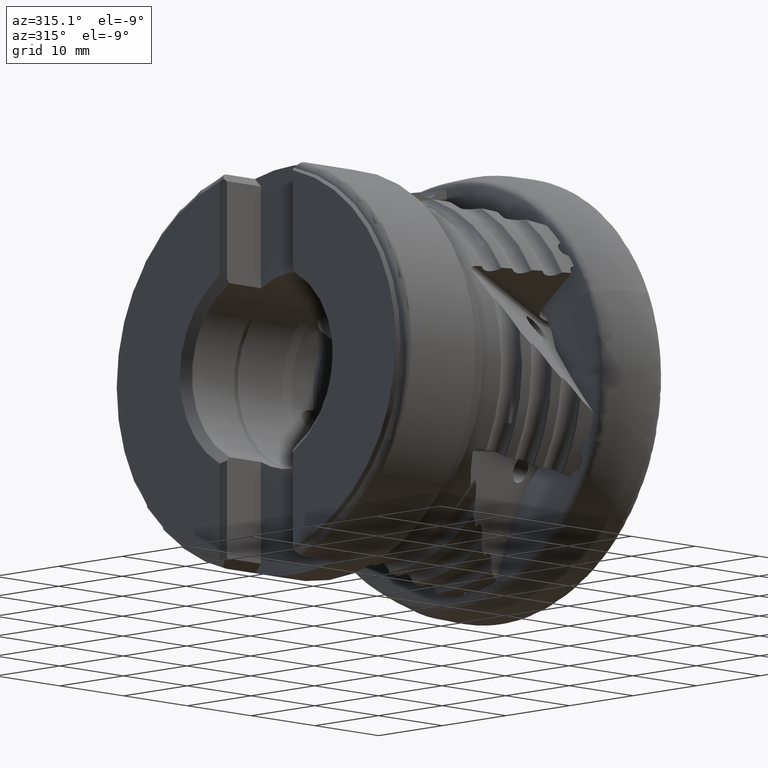
[diagram: clean part render]
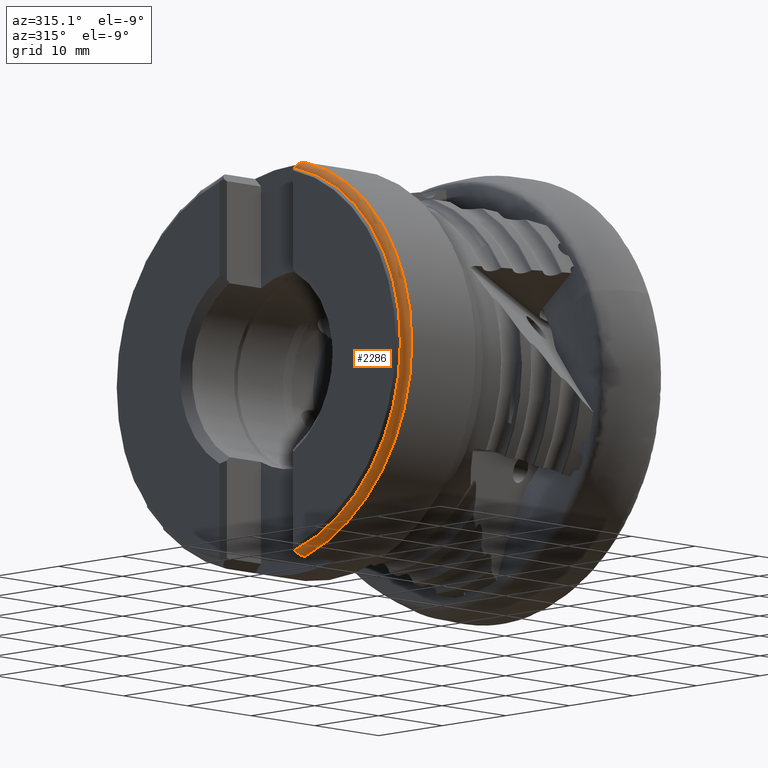
[diagram: same view with one face highlighted and labeled with its STEP entity id]
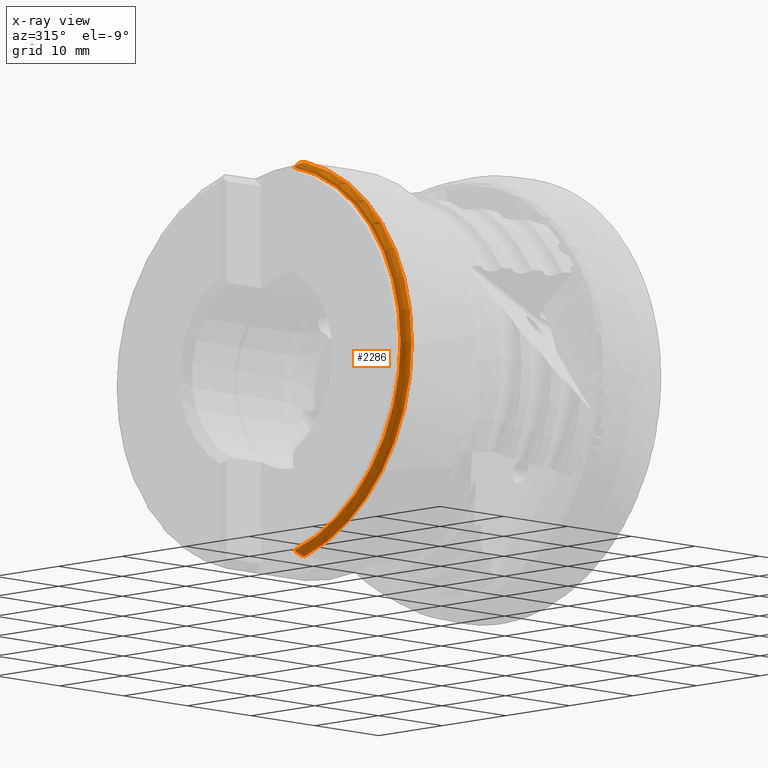
[diagram: x-ray of the same camera — body ghosted, the highlighted face saturated]
A machine part, auxiliary view. The second image highlights one B-rep face of the part: STEP entity #2286.
The next image is the same camera in x-ray: the body ghosted, the highlighted face saturated — about 0% of this face is hidden behind the body in this view.
In plain terms, the highlighted toroidal blend (fillet) surface has major radius 22 mm and minor (blend) radius 1 mm.
Its self-contained STEP definition (entity closure, byte-faithful):
#181 = TOROIDAL_SURFACE ( 'NONE', #7323, 21.99999999999999600, 1.000000000000000900 ) ;
#312 = CARTESIAN_POINT ( 'NONE',  ( -38.52876197310683900, -5.505765196031760800, -21.51159163349298000 ) ) ;
#672 = CARTESIAN_POINT ( 'NONE',  ( -38.48543908166140400, -5.676080914741536500, 21.68151065931770200 ) ) ;
#1342 = AXIS2_PLACEMENT_3D ( 'NONE', #9099, #3728, #10020 ) ;
#1780 = DIRECTION ( 'NONE',  ( 1.000000000000000000, -0.0000000000000000000, -0.0000000000000000000 ) ) ;
#2011 = B_SPLINE_CURVE_WITH_KNOTS ( 'NONE', 3,
 ( #4328, #9704, #3413, #5217, #11511, #6116, #672, #7017 ),
 .UNSPECIFIED., .F., .F.,
 ( 4, 2, 2, 4 ),
 ( 0.0000000000000000000, 0.0003622811353610845900, 0.0007245622707221691800, 0.001449124541444339700 ),
 .UNSPECIFIED. ) ;
#2166 = CARTESIAN_POINT ( 'NONE',  ( -38.36043613974800300, -5.826656989143510000, -21.83173601766229400 ) ) ;
#2286 = ADVANCED_FACE ( 'Fl�che5', ( #5035 ), #181, .T. ) ;
#2556 = DIRECTION ( 'NONE',  ( 1.000000000000000000, -0.0000000000000000000, -0.0000000000000000000 ) ) ;
#2613 = EDGE_CURVE ( 'NONE', #4187, #2741, #2011, .T. ) ;
#2741 = VERTEX_POINT ( 'NONE', #9097 ) ;
#3075 = CARTESIAN_POINT ( 'NONE',  ( -38.11847215820673500, -6.018335489103558100, -22.02296806736085300 ) ) ;
#3413 = CARTESIAN_POINT ( 'NONE',  ( -37.79267330800594500, -6.138042376461858600, 22.14239613799651000 ) ) ;
#3728 = DIRECTION ( 'NONE',  ( 1.000000000000000000, -0.0000000000000000000, -0.0000000000000000000 ) ) ;
#3811 = B_SPLINE_CURVE_WITH_KNOTS ( 'NONE', 3,
 ( #312, #5755, #7564, #2166, #8474, #3075, #9374, #4004, #10288, #4902 ),
 .UNSPECIFIED., .F., .F.,
 ( 4, 2, 2, 2, 4 ),
 ( 0.0000000000000000000, 0.0003626068956963609000, 0.0007252137913927218100, 0.001087820687089082700, 0.001450427582785443600 ),
 .UNSPECIFIED. ) ;
#4004 = CARTESIAN_POINT ( 'NONE',  ( -37.79512934776482100, -6.137478963517806600, -22.14183403733241600 ) ) ;
#4187 = VERTEX_POINT ( 'NONE', #7891 ) ;
#4328 = CARTESIAN_POINT ( 'NONE',  ( -37.54999999999999000, -6.156428778033634000, 22.16073971466203600 ) ) ;
#4526 = VERTEX_POINT ( 'NONE', #10693 ) ;
#4529 = DIRECTION ( 'NONE',  ( 0.0000000000000000000, 0.0000000000000000000, -1.000000000000000000 ) ) ;
#4616 = EDGE_CURVE ( 'NONE', #4187, #9308, #7838, .T. ) ;
#4902 = CARTESIAN_POINT ( 'NONE',  ( -37.54999999999999000, -6.156428778033639300, -22.16073971466203600 ) ) ;
#5035 = FACE_OUTER_BOUND ( 'NONE', #9859, .T. ) ;
#5217 = CARTESIAN_POINT ( 'NONE',  ( -38.01549695322271600, -6.069331795886145500, 22.07384559548803100 ) ) ;
#5378 = CARTESIAN_POINT ( 'NONE',  ( -37.54999999999999000, 0.0000000000000000000, 0.0000000000000000000 ) ) ;
#5755 = CARTESIAN_POINT ( 'NONE',  ( -38.50705336557379600, -5.591108463085767300, -21.59673612225990500 ) ) ;
#6116 = CARTESIAN_POINT ( 'NONE',  ( -38.37464612642767000, -5.837851647496018300, 21.84290460184294600 ) ) ;
#6726 = CARTESIAN_POINT ( 'NONE',  ( -37.54999999999999000, -6.156428778033639300, -22.16073971466203600 ) ) ;
#6806 = ORIENTED_EDGE ( 'NONE', *, *, #8746, .T. ) ;
#7017 = CARTESIAN_POINT ( 'NONE',  ( -38.52876197310683900, -5.505765196031756400, 21.51159163349298000 ) ) ;
#7323 = AXIS2_PLACEMENT_3D ( 'NONE', #5378, #1780, #4529 ) ;
#7515 = CIRCLE ( 'NONE', #8782, 22.20499999999999500 ) ;
#7564 = CARTESIAN_POINT ( 'NONE',  ( -38.46955393888008200, -5.672483015667497200, -21.67792114033314700 ) ) ;
#7838 = CIRCLE ( 'NONE', #1342, 23.00000000000000000 ) ;
#7891 = CARTESIAN_POINT ( 'NONE',  ( -37.54999999999999000, -6.156428778033634000, 22.16073971466203600 ) ) ;
#7954 = ORIENTED_EDGE ( 'NONE', *, *, #2613, .T. ) ;
#7958 = CARTESIAN_POINT ( 'NONE',  ( -38.52876197310683900, 0.0000000000000000000, 0.0000000000000000000 ) ) ;
#8415 = ORIENTED_EDGE ( 'NONE', *, *, #10060, .T. ) ;
#8474 = CARTESIAN_POINT ( 'NONE',  ( -38.28973416780603900, -5.897406801060737000, -21.90232104181231400 ) ) ;
#8746 = EDGE_CURVE ( 'NONE', #4526, #9308, #3811, .T. ) ;
#8782 = AXIS2_PLACEMENT_3D ( 'NONE', #7958, #2556, #8867 ) ;
#8867 = DIRECTION ( 'NONE',  ( 0.0000000000000000000, 0.0000000000000000000, -1.000000000000000000 ) ) ;
#9097 = CARTESIAN_POINT ( 'NONE',  ( -38.52876197310683900, -5.505765196031756400, 21.51159163349298000 ) ) ;
#9099 = CARTESIAN_POINT ( 'NONE',  ( -37.54999999999999000, 0.0000000000000000000, 0.0000000000000000000 ) ) ;
#9308 = VERTEX_POINT ( 'NONE', #6726 ) ;
#9374 = CARTESIAN_POINT ( 'NONE',  ( -38.01657770343578600, -6.068801472236265800, -22.07331650704779600 ) ) ;
#9537 = ORIENTED_EDGE ( 'NONE', *, *, #4616, .F. ) ;
#9704 = CARTESIAN_POINT ( 'NONE',  ( -37.67261370759281600, -6.156428778033635800, 22.16073971466204600 ) ) ;
#9859 = EDGE_LOOP ( 'NONE', ( #9537, #7954, #8415, #6806 ) ) ;
#10020 = DIRECTION ( 'NONE',  ( 0.0000000000000000000, 0.0000000000000000000, -1.000000000000000000 ) ) ;
#10060 = EDGE_CURVE ( 'NONE', #2741, #4526, #7515, .T. ) ;
#10288 = CARTESIAN_POINT ( 'NONE',  ( -37.67309151947912900, -6.156428778033634900, -22.16073971466203600 ) ) ;
#10693 = CARTESIAN_POINT ( 'NONE',  ( -38.52876197310683900, -5.505765196031760800, -21.51159163349298000 ) ) ;
#11511 = CARTESIAN_POINT ( 'NONE',  ( -38.11697167560924300, -6.019192067305553500, 22.02382265045353200 ) ) ;